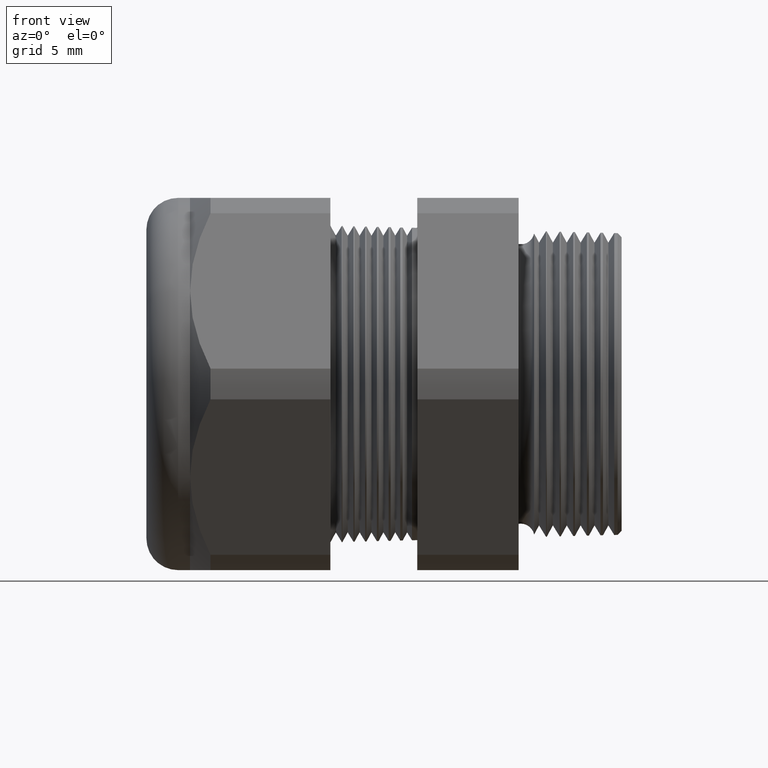
[diagram: clean part render]
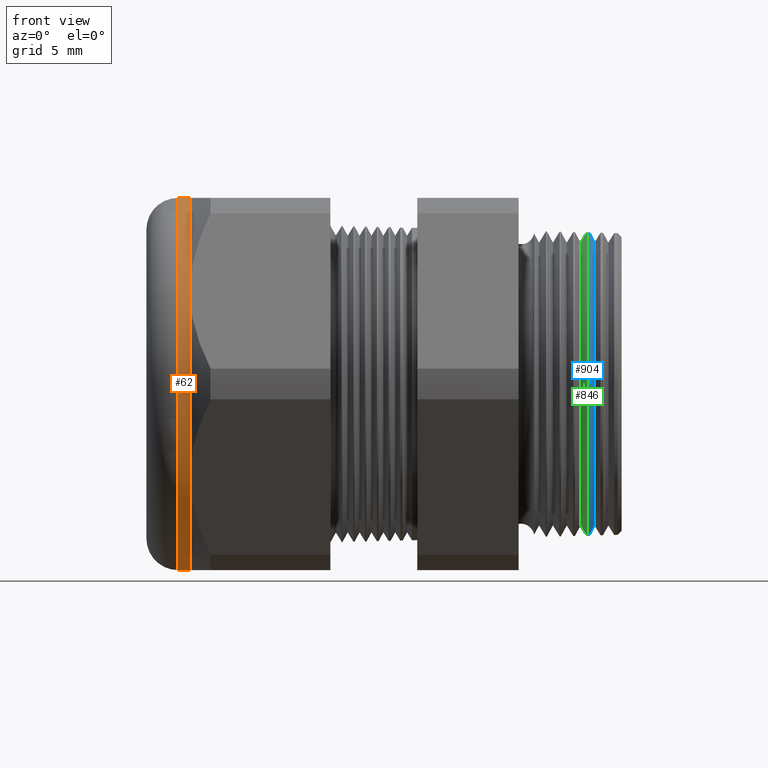
[diagram: same view with three faces highlighted in distinct colors, each labeled with its STEP entity id]
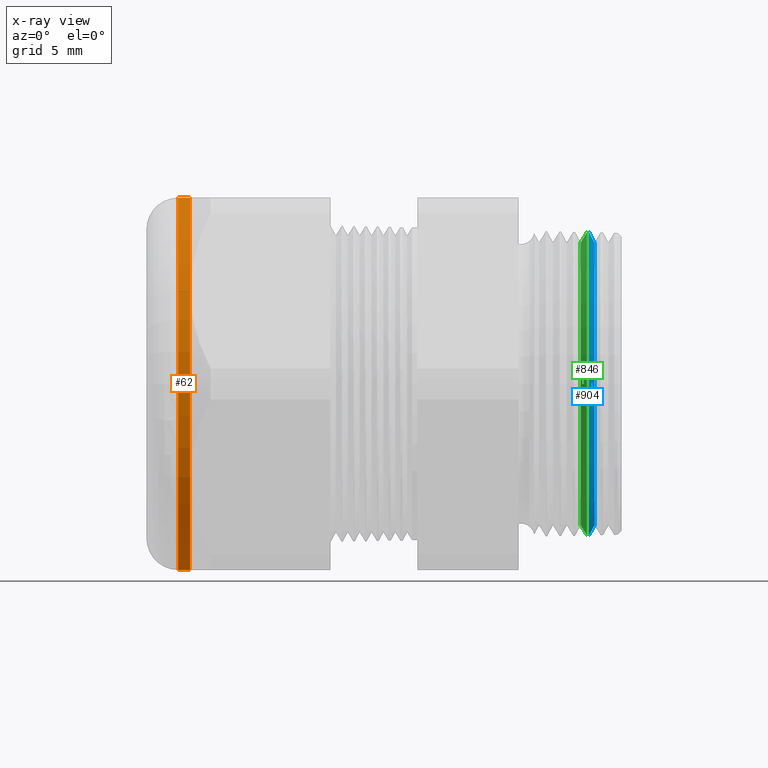
[diagram: x-ray of the same camera — body ghosted, the three highlighted faces saturated]
A machine part, front view with three faces highlighted in distinct colors.
The next image is the same camera in x-ray (body ghosted, the three faces saturated) — at least one of them is partly hidden behind the body in this view.
Their STEP definitions:

[orange] entity #62 — the highlighted cylindrical surface (partial cylindrical patch) has radius 11.938 mm, axis along (1, 0, 0).
#55 = EDGE_CURVE ( 'NONE', #127, #270, #1187, .T. ) ;
#62 = ADVANCED_FACE ( 'NONE', ( #1167 ), #1226, .T. ) ;
#69 = ORIENTED_EDGE ( 'NONE', *, *, #284, .F. ) ;
#70 = EDGE_LOOP ( 'NONE', ( #69, #158, #149, #156, #153, #148 ) ) ;
#127 = VERTEX_POINT ( 'NONE', #1350 ) ;
#136 = VERTEX_POINT ( 'NONE', #1332 ) ;
#148 = ORIENTED_EDGE ( 'NONE', *, *, #152, .F. ) ;
#149 = ORIENTED_EDGE ( 'NONE', *, *, #55, .T. ) ;
#152 = EDGE_CURVE ( 'NONE', #280, #3808, #1376, .T. ) ;
#153 = ORIENTED_EDGE ( 'NONE', *, *, #154, .F. ) ;
#154 = EDGE_CURVE ( 'NONE', #3808, #3806, #1372, .T. ) ;
#156 = ORIENTED_EDGE ( 'NONE', *, *, #157, .F. ) ;
#157 = EDGE_CURVE ( 'NONE', #3806, #270, #1367, .T. ) ;
#158 = ORIENTED_EDGE ( 'NONE', *, *, #160, .T. ) ;
#160 = EDGE_CURVE ( 'NONE', #136, #127, #1361, .T. ) ;
#270 = VERTEX_POINT ( 'NONE', #1604 ) ;
#280 = VERTEX_POINT ( 'NONE', #1582 ) ;
#284 = EDGE_CURVE ( 'NONE', #136, #280, #1638, .T. ) ;
#1167 = FACE_OUTER_BOUND ( 'NONE', #70, .T. ) ;
#1179 = DIRECTION ( 'NONE',  ( 1.000000000000000000, 0.0000000000000000000, 0.0000000000000000000 ) ) ;
#1180 = VECTOR ( 'NONE', #1179, 39.37007874015748100 ) ;
#1181 = CARTESIAN_POINT ( 'NONE',  ( 0.0000000000000000000, 0.0000000000000000000, -0.4699999999999999200 ) ) ;
#1187 = LINE ( 'NONE', #1181, #1180 ) ;
#1222 = DIRECTION ( 'NONE',  ( 0.0000000000000000000, 0.0000000000000000000, -1.000000000000000000 ) ) ;
#1223 = DIRECTION ( 'NONE',  ( 1.000000000000000000, 0.0000000000000000000, 0.0000000000000000000 ) ) ;
#1224 = CARTESIAN_POINT ( 'NONE',  ( 0.0000000000000000000, 0.0000000000000000000, 0.0000000000000000000 ) ) ;
#1225 = AXIS2_PLACEMENT_3D ( 'NONE', #1224, #1223, #1222 ) ;
#1226 = CYLINDRICAL_SURFACE ( 'NONE', #1225, 0.4699999999999999200 ) ;
#1332 = CARTESIAN_POINT ( 'NONE',  ( -1.169999999999999700, 5.755839955992558400E-017, 0.4699999999999999200 ) ) ;
#1350 = CARTESIAN_POINT ( 'NONE',  ( -1.169999999999999700, 0.0000000000000000000, -0.4699999999999999200 ) ) ;
#1357 = DIRECTION ( 'NONE',  ( 0.0000000000000000000, 0.0000000000000000000, 1.000000000000000000 ) ) ;
#1358 = DIRECTION ( 'NONE',  ( 1.000000000000000000, 0.0000000000000000000, 0.0000000000000000000 ) ) ;
#1359 = CARTESIAN_POINT ( 'NONE',  ( -1.169999999999999700, 0.0000000000000000000, 0.0000000000000000000 ) ) ;
#1360 = AXIS2_PLACEMENT_3D ( 'NONE', #1359, #1358, #1357 ) ;
#1361 = CIRCLE ( 'NONE', #1360, 0.4699999999999999200 ) ;
#1363 = DIRECTION ( 'NONE',  ( 0.0000000000000000000, 0.0000000000000000000, -1.000000000000000000 ) ) ;
#1364 = DIRECTION ( 'NONE',  ( 1.000000000000000000, 0.0000000000000000000, 0.0000000000000000000 ) ) ;
#1365 = CARTESIAN_POINT ( 'NONE',  ( -1.139763779527558600, 0.0000000000000000000, 0.0000000000000000000 ) ) ;
#1366 = AXIS2_PLACEMENT_3D ( 'NONE', #1365, #1364, #1363 ) ;
#1367 = CIRCLE ( 'NONE', #1366, 0.4699999999999999200 ) ;
#1368 = DIRECTION ( 'NONE',  ( 0.0000000000000000000, 0.0000000000000000000, -1.000000000000000000 ) ) ;
#1369 = DIRECTION ( 'NONE',  ( 1.000000000000000000, 0.0000000000000000000, 0.0000000000000000000 ) ) ;
#1370 = CARTESIAN_POINT ( 'NONE',  ( -1.139763779527558600, 0.0000000000000000000, 0.0000000000000000000 ) ) ;
#1371 = AXIS2_PLACEMENT_3D ( 'NONE', #1370, #1369, #1368 ) ;
#1372 = CIRCLE ( 'NONE', #1371, 0.4699999999999999200 ) ;
#1373 = DIRECTION ( 'NONE',  ( 0.0000000000000000000, 0.0000000000000000000, -1.000000000000000000 ) ) ;
#1374 = DIRECTION ( 'NONE',  ( 1.000000000000000000, 0.0000000000000000000, 0.0000000000000000000 ) ) ;
#1375 = AXIS2_PLACEMENT_3D ( 'NONE', #1381, #1374, #1373 ) ;
#1376 = CIRCLE ( 'NONE', #1375, 0.4699999999999999200 ) ;
#1381 = CARTESIAN_POINT ( 'NONE',  ( -1.139763779527558600, 0.0000000000000000000, 0.0000000000000000000 ) ) ;
#1582 = CARTESIAN_POINT ( 'NONE',  ( -1.139763779527558600, 0.0000000000000000000, 0.4699999999999999700 ) ) ;
#1604 = CARTESIAN_POINT ( 'NONE',  ( -1.139763779527558600, 0.0000000000000000000, -0.4699999999999999700 ) ) ;
#1635 = DIRECTION ( 'NONE',  ( 1.000000000000000000, 0.0000000000000000000, 0.0000000000000000000 ) ) ;
#1636 = VECTOR ( 'NONE', #1635, 39.37007874015748100 ) ;
#1637 = CARTESIAN_POINT ( 'NONE',  ( 0.0000000000000000000, 5.755839955992558400E-017, 0.4699999999999999200 ) ) ;
#1638 = LINE ( 'NONE', #1637, #1636 ) ;
#3269 = CARTESIAN_POINT ( 'NONE',  ( -1.139763779527558600, -0.4070319397786862400, -0.2350000000000001000 ) ) ;
#3271 = CARTESIAN_POINT ( 'NONE',  ( -1.139763779527558600, -0.4070319397786862900, 0.2349999999999999600 ) ) ;
#3806 = VERTEX_POINT ( 'NONE', #3269 ) ;
#3808 = VERTEX_POINT ( 'NONE', #3271 ) ;

[blue] entity #904 — the highlighted conical surface has half-angle 61.5 deg.
#462 = VERTEX_POINT ( 'NONE', #1949 ) ;
#464 = VERTEX_POINT ( 'NONE', #1944 ) ;
#467 = EDGE_CURVE ( 'NONE', #880, #462, #1938, .T. ) ;
#478 = EDGE_CURVE ( 'NONE', #871, #464, #1978, .T. ) ;
#830 = ORIENTED_EDGE ( 'NONE', *, *, #467, .F. ) ;
#831 = ORIENTED_EDGE ( 'NONE', *, *, #832, .F. ) ;
#832 = EDGE_CURVE ( 'NONE', #871, #880, #2488, .T. ) ;
#833 = ORIENTED_EDGE ( 'NONE', *, *, #478, .T. ) ;
#834 = ORIENTED_EDGE ( 'NONE', *, *, #3777, .T. ) ;
#871 = VERTEX_POINT ( 'NONE', #2566 ) ;
#880 = VERTEX_POINT ( 'NONE', #2545 ) ;
#904 = ADVANCED_FACE ( 'NONE', ( #2585 ), #2580, .T. ) ;
#905 = EDGE_LOOP ( 'NONE', ( #830, #831, #833, #834 ) ) ;
#1935 = DIRECTION ( 'NONE',  ( -0.4771587602596187900, 1.076240564057388000E-016, -0.8788171126619597200 ) ) ;
#1936 = VECTOR ( 'NONE', #1935, 39.37007874015748900 ) ;
#1937 = CARTESIAN_POINT ( 'NONE',  ( -0.1349999999999999500, 4.746122918332917100E-017, -0.3875503468949049700 ) ) ;
#1938 = LINE ( 'NONE', #1937, #1936 ) ;
#1944 = CARTESIAN_POINT ( 'NONE',  ( -0.1324760000967738800, 0.0000000000000000000, 0.3829017173567919000 ) ) ;
#1949 = CARTESIAN_POINT ( 'NONE',  ( -0.1324760000967738800, 4.690012321503250200E-017, -0.3829017173567919000 ) ) ;
#1970 = DIRECTION ( 'NONE',  ( -0.4771587602596187900, 0.0000000000000000000, 0.8788171126619597200 ) ) ;
#1971 = VECTOR ( 'NONE', #1970, 39.37007874015748900 ) ;
#1972 = CARTESIAN_POINT ( 'NONE',  ( -0.1349999999999999500, 0.0000000000000000000, 0.3875503468949049700 ) ) ;
#1978 = LINE ( 'NONE', #1972, #1971 ) ;
#2485 = DIRECTION ( 'NONE',  ( 0.0000000000000000000, 0.0000000000000000000, -1.000000000000000000 ) ) ;
#2486 = DIRECTION ( 'NONE',  ( 1.000000000000000000, 0.0000000000000000000, 0.0000000000000000000 ) ) ;
#2487 = AXIS2_PLACEMENT_3D ( 'NONE', #2492, #2486, #2485 ) ;
#2488 = CIRCLE ( 'NONE', #2487, 0.3571072291010749500 ) ;
#2492 = CARTESIAN_POINT ( 'NONE',  ( -0.1184707356790751600, 0.0000000000000000000, 0.0000000000000000000 ) ) ;
#2545 = CARTESIAN_POINT ( 'NONE',  ( -0.1184707356790751600, 4.531247938100158000E-017, -0.3571072291010749500 ) ) ;
#2566 = CARTESIAN_POINT ( 'NONE',  ( -0.1184707356790751600, 0.0000000000000000000, 0.3571072291010749500 ) ) ;
#2575 = DIRECTION ( 'NONE',  ( 0.0000000000000000000, 0.0000000000000000000, 1.000000000000000000 ) ) ;
#2576 = DIRECTION ( 'NONE',  ( -1.000000000000000000, 0.0000000000000000000, 0.0000000000000000000 ) ) ;
#2577 = CARTESIAN_POINT ( 'NONE',  ( -0.1349999999999999500, 0.0000000000000000000, 0.0000000000000000000 ) ) ;
#2578 = AXIS2_PLACEMENT_3D ( 'NONE', #2577, #2576, #2575 ) ;
#2580 = CONICAL_SURFACE ( 'NONE', #2578, 0.3875503468949049700, 1.073377489976501000 ) ;
#2585 = FACE_OUTER_BOUND ( 'NONE', #905, .T. ) ;
#3256 = DIRECTION ( 'NONE',  ( 0.0000000000000000000, 0.0000000000000000000, 1.000000000000000000 ) ) ;
#3257 = DIRECTION ( 'NONE',  ( 1.000000000000000000, 0.0000000000000000000, 0.0000000000000000000 ) ) ;
#3258 = CARTESIAN_POINT ( 'NONE',  ( -0.1324760000967738800, 0.0000000000000000000, 0.0000000000000000000 ) ) ;
#3259 = AXIS2_PLACEMENT_3D ( 'NONE', #3258, #3257, #3256 ) ;
#3260 = CIRCLE ( 'NONE', #3259, 0.3829017173567919000 ) ;
#3777 = EDGE_CURVE ( 'NONE', #464, #462, #3260, .T. ) ;

[green] entity #846 — the highlighted conical surface has half-angle 58.5 deg.
#451 = VERTEX_POINT ( 'NONE', #1958 ) ;
#452 = VERTEX_POINT ( 'NONE', #1957 ) ;
#474 = VERTEX_POINT ( 'NONE', #1979 ) ;
#504 = EDGE_CURVE ( 'NONE', #452, #514, #1991, .T. ) ;
#510 = EDGE_CURVE ( 'NONE', #474, #451, #2046, .T. ) ;
#514 = VERTEX_POINT ( 'NONE', #2038 ) ;
#843 = EDGE_CURVE ( 'NONE', #452, #474, #2540, .T. ) ;
#846 = ADVANCED_FACE ( 'NONE', ( #2531 ), #2530, .T. ) ;
#847 = EDGE_LOOP ( 'NONE', ( #848, #849, #850, #903 ) ) ;
#848 = ORIENTED_EDGE ( 'NONE', *, *, #504, .F. ) ;
#849 = ORIENTED_EDGE ( 'NONE', *, *, #843, .T. ) ;
#850 = ORIENTED_EDGE ( 'NONE', *, *, #510, .T. ) ;
#903 = ORIENTED_EDGE ( 'NONE', *, *, #3824, .T. ) ;
#1957 = CARTESIAN_POINT ( 'NONE',  ( -0.1534707356790751800, 0.0000000000000000000, 0.3571072291010749500 ) ) ;
#1958 = CARTESIAN_POINT ( 'NONE',  ( -0.1375819195166233000, 4.690831017516304200E-017, -0.3830354205622587000 ) ) ;
#1979 = CARTESIAN_POINT ( 'NONE',  ( -0.1534707356790751800, 4.536940867384431100E-017, -0.3571072291010749500 ) ) ;
#1991 = LINE ( 'NONE', #2055, #2054 ) ;
#2038 = CARTESIAN_POINT ( 'NONE',  ( -0.1375819195166233000, 0.0000000000000000000, 0.3830354205622587000 ) ) ;
#2043 = DIRECTION ( 'NONE',  ( 0.5224985647159347000, 0.0000000000000000000, -0.8526401643541008400 ) ) ;
#2044 = VECTOR ( 'NONE', #2043, 39.37007874015748100 ) ;
#2045 = CARTESIAN_POINT ( 'NONE',  ( -0.1534707356790751800, 0.0000000000000000000, -0.3571072291010749500 ) ) ;
#2046 = LINE ( 'NONE', #2045, #2044 ) ;
#2053 = DIRECTION ( 'NONE',  ( 0.5224985647159347000, 1.044183048100722800E-016, 0.8526401643541008400 ) ) ;
#2054 = VECTOR ( 'NONE', #2053, 39.37007874015748100 ) ;
#2055 = CARTESIAN_POINT ( 'NONE',  ( -0.1534707356790751800, 4.373302250710119800E-017, 0.3571072291010749500 ) ) ;
#2525 = DIRECTION ( 'NONE',  ( 0.0000000000000000000, 0.0000000000000000000, -1.000000000000000000 ) ) ;
#2526 = DIRECTION ( 'NONE',  ( 1.000000000000000000, 0.0000000000000000000, 0.0000000000000000000 ) ) ;
#2527 = CARTESIAN_POINT ( 'NONE',  ( -0.1534707356790751800, 0.0000000000000000000, 0.0000000000000000000 ) ) ;
#2528 = AXIS2_PLACEMENT_3D ( 'NONE', #2527, #2526, #2525 ) ;
#2530 = CONICAL_SURFACE ( 'NONE', #2528, 0.3571072291010749500, 1.021017612416699400 ) ;
#2531 = FACE_OUTER_BOUND ( 'NONE', #847, .T. ) ;
#2532 = DIRECTION ( 'NONE',  ( 0.0000000000000000000, 0.0000000000000000000, -1.000000000000000000 ) ) ;
#2533 = DIRECTION ( 'NONE',  ( 1.000000000000000000, 0.0000000000000000000, 0.0000000000000000000 ) ) ;
#2534 = CARTESIAN_POINT ( 'NONE',  ( -0.1534707356790751800, 0.0000000000000000000, 0.0000000000000000000 ) ) ;
#2535 = AXIS2_PLACEMENT_3D ( 'NONE', #2534, #2533, #2532 ) ;
#2540 = CIRCLE ( 'NONE', #2535, 0.3571072291010749500 ) ;
#3296 = CARTESIAN_POINT ( 'NONE',  ( -0.1375819195166233000, 0.0000000000000000000, 0.0000000000000000000 ) ) ;
#3352 = DIRECTION ( 'NONE',  ( 0.0000000000000000000, 0.0000000000000000000, -1.000000000000000000 ) ) ;
#3353 = DIRECTION ( 'NONE',  ( -1.000000000000000000, 0.0000000000000000000, 0.0000000000000000000 ) ) ;
#3354 = AXIS2_PLACEMENT_3D ( 'NONE', #3296, #3353, #3352 ) ;
#3355 = CIRCLE ( 'NONE', #3354, 0.3830354205622587000 ) ;
#3824 = EDGE_CURVE ( 'NONE', #451, #514, #3355, .T. ) ;